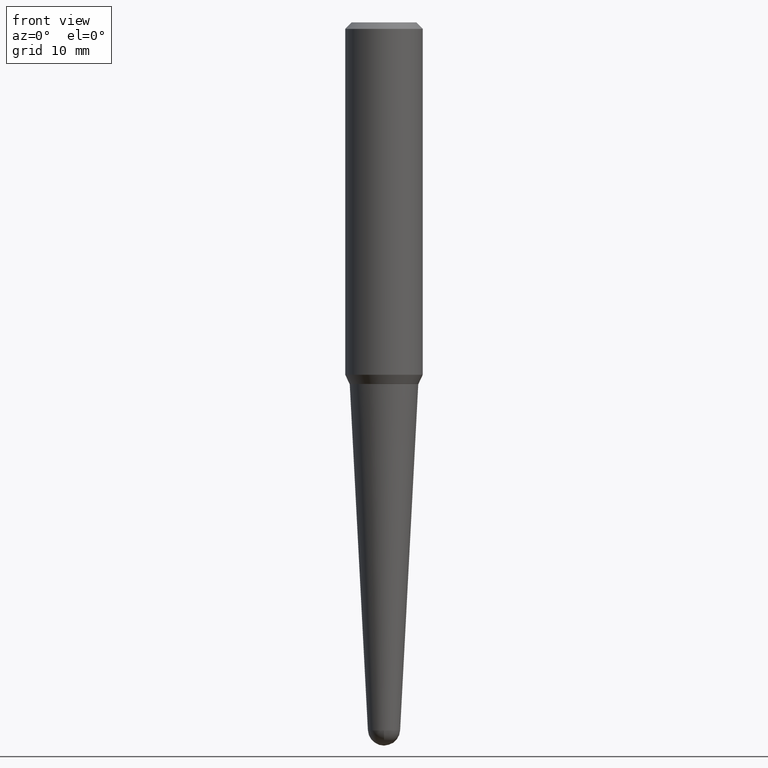
[diagram: clean part render]
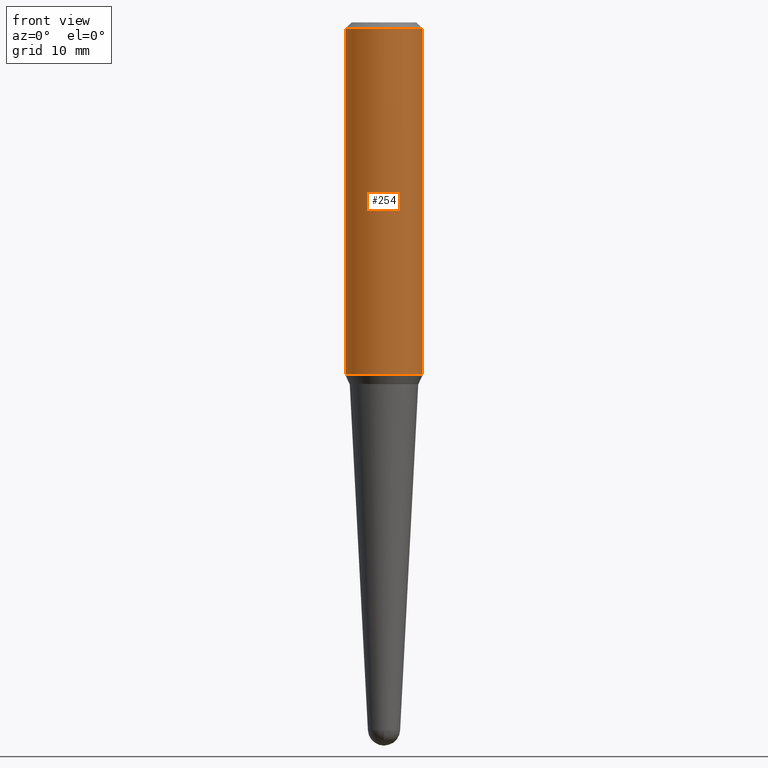
[diagram: same view with one face highlighted and labeled with its STEP entity id]
A machine part, front view. The second image highlights one B-rep face of the part: STEP entity #254.
In plain terms, the highlighted cylindrical surface (partial cylindrical patch) has radius 4.7625 mm, axis along (-0, 0, 1).
Its self-contained STEP definition (entity closure, byte-faithful):
#6 = DIRECTION ( 'NONE',  ( -2.445468806185136877E-29, 3.491481338843145188E-15, 1.000000000000000000 ) ) ;
#13 = ORIENTED_EDGE ( 'NONE', *, *, #74, .T. ) ;
#28 = EDGE_CURVE ( 'NONE', #454, #264, #402, .T. ) ;
#44 = CIRCLE ( 'NONE', #87, 0.1875000000000002220 ) ;
#46 = CYLINDRICAL_SURFACE ( 'NONE', #281, 0.1875000000000001110 ) ;
#63 = VERTEX_POINT ( 'NONE', #114 ) ;
#74 = EDGE_CURVE ( 'NONE', #63, #264, #395, .T. ) ;
#87 = AXIS2_PLACEMENT_3D ( 'NONE', #340, #185, #458 ) ;
#90 = DIRECTION ( 'NONE',  ( 1.000000000000000000, -6.982962677686266711E-15, 4.852736867747363404E-29 ) ) ;
#112 = EDGE_CURVE ( 'NONE', #382, #454, #208, .T. ) ;
#114 = CARTESIAN_POINT ( 'NONE',  ( 0.1875000000000002220, -7.262868483743506194E-15, -1.705168209104609645 ) ) ;
#127 = FACE_OUTER_BOUND ( 'NONE', #232, .T. ) ;
#138 = CARTESIAN_POINT ( 'NONE',  ( 0.1875000000000001110, -1.309305502066173628E-15, 5.931196827434387479E-16 ) ) ;
#139 = CARTESIAN_POINT ( 'NONE',  ( -0.1874999999999999722, -1.699068257207900914E-15, -0.03125000000000003469 ) ) ;
#142 = VECTOR ( 'NONE', #6, 39.37007874015748143 ) ;
#185 = DIRECTION ( 'NONE',  ( -2.445468806185136597E-29, 3.491481338843145583E-15, 1.000000000000000000 ) ) ;
#193 = CARTESIAN_POINT ( 'NONE',  ( 0.1874999999999999722, -1.418414293905023123E-15, -0.03125000000000003469 ) ) ;
#208 = LINE ( 'NONE', #251, #142 ) ;
#214 = EDGE_CURVE ( 'NONE', #382, #63, #44, .T. ) ;
#232 = EDGE_LOOP ( 'NONE', ( #350, #315, #13, #305 ) ) ;
#234 = DIRECTION ( 'NONE',  ( -2.445468806185136597E-29, 3.491481338843145583E-15, 1.000000000000000000 ) ) ;
#235 = DIRECTION ( 'NONE',  ( -2.445468806185136597E-29, 3.491481338843145583E-15, 1.000000000000000000 ) ) ;
#251 = CARTESIAN_POINT ( 'NONE',  ( -0.1875000000000001110, 1.332267629550190807E-15, 5.931196827434205055E-16 ) ) ;
#254 = ADVANCED_FACE ( 'NONE', ( #127 ), #46, .T. ) ;
#264 = VERTEX_POINT ( 'NONE', #193 ) ;
#267 = AXIS2_PLACEMENT_3D ( 'NONE', #424, #234, #384 ) ;
#281 = AXIS2_PLACEMENT_3D ( 'NONE', #345, #235, #90 ) ;
#295 = DIRECTION ( 'NONE',  ( -2.445468806185136877E-29, 3.491481338843145188E-15, 1.000000000000000000 ) ) ;
#305 = ORIENTED_EDGE ( 'NONE', *, *, #28, .F. ) ;
#313 = CARTESIAN_POINT ( 'NONE',  ( -0.1875000000000002220, -4.621295352127141759E-15, -1.705168209104609645 ) ) ;
#315 = ORIENTED_EDGE ( 'NONE', *, *, #214, .T. ) ;
#340 = CARTESIAN_POINT ( 'NONE',  ( 4.169935664663897396E-29, -5.953562981677331975E-15, -1.705168209104609645 ) ) ;
#345 = CARTESIAN_POINT ( 'NONE',  ( -1.450455682483482035E-44, 2.070866303999251778E-30, 5.931196827434296760E-16 ) ) ;
#350 = ORIENTED_EDGE ( 'NONE', *, *, #112, .F. ) ;
#382 = VERTEX_POINT ( 'NONE', #313 ) ;
#384 = DIRECTION ( 'NONE',  ( 1.000000000000000000, -6.982962677686266711E-15, 0.000000000000000000 ) ) ;
#395 = LINE ( 'NONE', #138, #446 ) ;
#402 = CIRCLE ( 'NONE', #267, 0.1874999999999999722 ) ;
#424 = CARTESIAN_POINT ( 'NONE',  ( 7.642090019328561499E-31, -1.091087918388484350E-16, -0.03125000000000003469 ) ) ;
#446 = VECTOR ( 'NONE', #295, 39.37007874015748143 ) ;
#454 = VERTEX_POINT ( 'NONE', #139 ) ;
#458 = DIRECTION ( 'NONE',  ( 1.000000000000000000, -6.982962677686265133E-15, 0.000000000000000000 ) ) ;